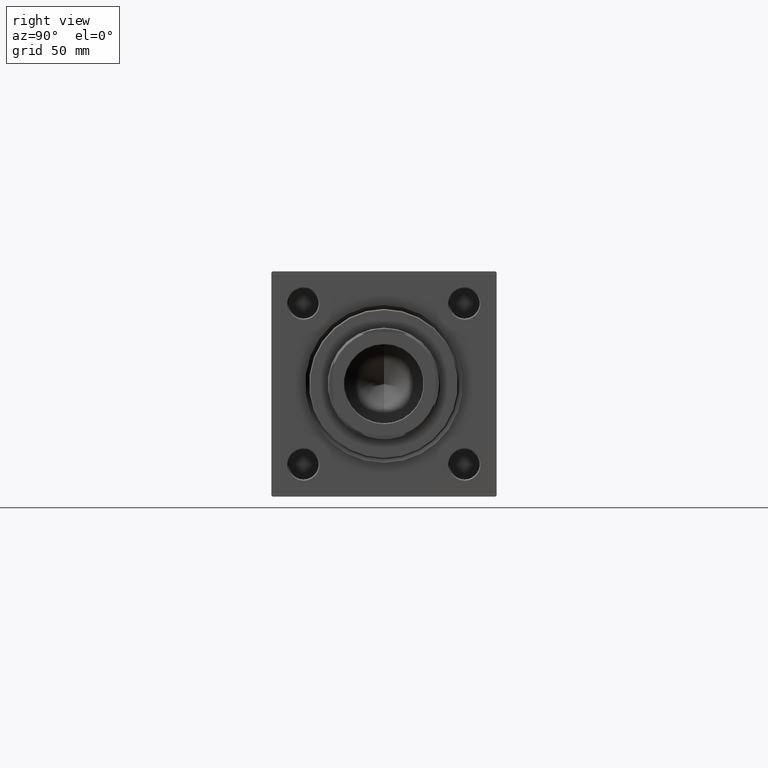
[diagram: clean part render]
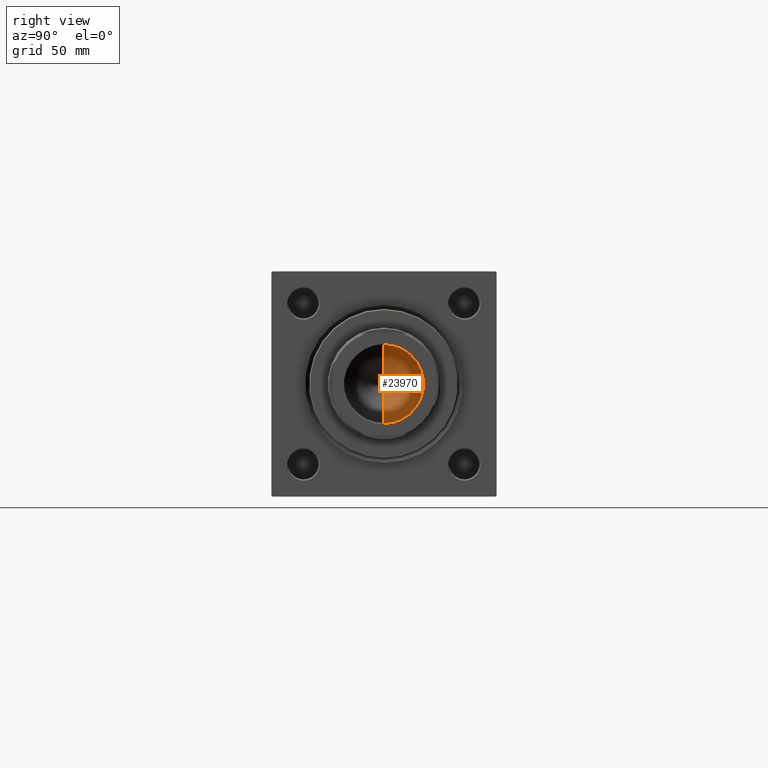
[diagram: same view with one face highlighted and labeled with its STEP entity id]
A machine part, right view. The second image highlights one B-rep face of the part: STEP entity #23970.
In plain terms, the highlighted conical surface has half-angle 59 deg.
Its self-contained STEP definition (entity closure, byte-faithful):
#948 = CARTESIAN_POINT ( 'NONE',  ( 15.74999999999998934, 0.000000000000000000, 155.0000000000000284 ) ) ;
#3940 = AXIS2_PLACEMENT_3D ( 'NONE', #37723, #15665, #31872 ) ;
#6861 = DIRECTION ( 'NONE',  ( 1.000000000000000000, 0.000000000000000000, 0.000000000000000000 ) ) ;
#6951 = EDGE_CURVE ( 'NONE', #15354, #16369, #24858, .T. ) ;
#7230 = CARTESIAN_POINT ( 'NONE',  ( -15.74999999999998934, 1.928818708657080161E-15, 155.0000000000000284 ) ) ;
#11085 = CIRCLE ( 'NONE', #41045, 15.74999999999998934 ) ;
#11687 = VECTOR ( 'NONE', #20311, 1000.000000000000000 ) ;
#12969 = CARTESIAN_POINT ( 'NONE',  ( 15.74999999999998934, 0.000000000000000000, 155.0000000000000284 ) ) ;
#15354 = VERTEX_POINT ( 'NONE', #23739 ) ;
#15665 = DIRECTION ( 'NONE',  ( -0.000000000000000000, -0.000000000000000000, 1.000000000000000000 ) ) ;
#16369 = VERTEX_POINT ( 'NONE', #948 ) ;
#19530 = ORIENTED_EDGE ( 'NONE', *, *, #48777, .T. ) ;
#19722 = EDGE_LOOP ( 'NONE', ( #24702, #43756, #19530 ) ) ;
#20311 = DIRECTION ( 'NONE',  ( 0.8571673007021118895, 0.000000000000000000, 0.5150380749100549327 ) ) ;
#22250 = FACE_OUTER_BOUND ( 'NONE', #19722, .T. ) ;
#22557 = DIRECTION ( 'NONE',  ( -0.000000000000000000, -0.000000000000000000, 1.000000000000000000 ) ) ;
#23739 = CARTESIAN_POINT ( 'NONE',  ( -1.497379240617067851E-14, 0.000000000000000000, 145.5364452503159498 ) ) ;
#23970 = ADVANCED_FACE ( 'NONE', ( #22250 ), #48482, .F. ) ;
#24702 = ORIENTED_EDGE ( 'NONE', *, *, #6951, .F. ) ;
#24858 = LINE ( 'NONE', #12969, #11687 ) ;
#26983 = DIRECTION ( 'NONE',  ( -0.8571673007021118895, 1.049727191138618079E-16, 0.5150380749100549327 ) ) ;
#27852 = CARTESIAN_POINT ( 'NONE',  ( -15.74999999999998934, 1.928818708657080161E-15, 155.0000000000000284 ) ) ;
#30779 = LINE ( 'NONE', #7230, #40966 ) ;
#31872 = DIRECTION ( 'NONE',  ( 1.000000000000000000, 0.000000000000000000, 0.000000000000000000 ) ) ;
#35200 = VERTEX_POINT ( 'NONE', #27852 ) ;
#37723 = CARTESIAN_POINT ( 'NONE',  ( 0.000000000000000000, 0.000000000000000000, 155.0000000000000284 ) ) ;
#40966 = VECTOR ( 'NONE', #26983, 1000.000000000000000 ) ;
#41045 = AXIS2_PLACEMENT_3D ( 'NONE', #46639, #22557, #6861 ) ;
#43756 = ORIENTED_EDGE ( 'NONE', *, *, #47345, .T. ) ;
#46639 = CARTESIAN_POINT ( 'NONE',  ( 0.000000000000000000, 0.000000000000000000, 155.0000000000000284 ) ) ;
#47345 = EDGE_CURVE ( 'NONE', #15354, #35200, #30779, .T. ) ;
#48482 = CONICAL_SURFACE ( 'NONE', #3940, 15.74999999999998934, 1.029744258676653645 ) ;
#48777 = EDGE_CURVE ( 'NONE', #35200, #16369, #11085, .T. ) ;